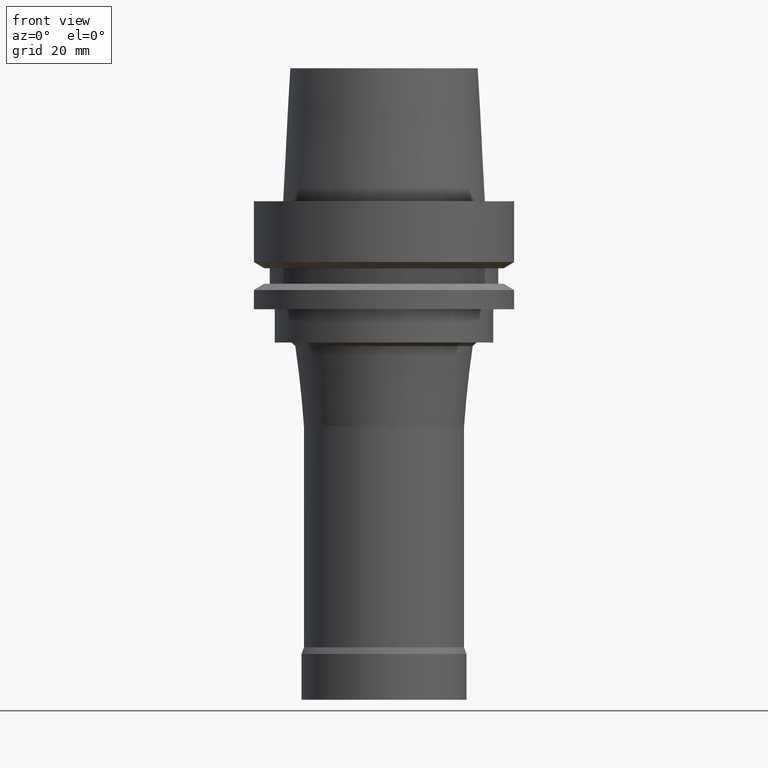
[diagram: clean part render]
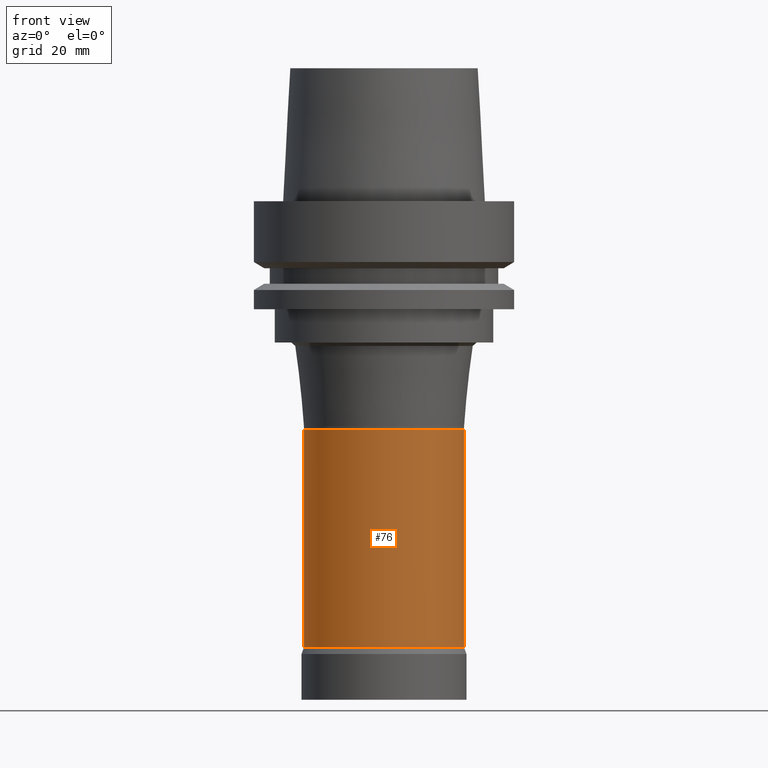
[diagram: same view with one face highlighted and labeled with its STEP entity id]
A machine part, front view. The second image highlights one B-rep face of the part: STEP entity #76.
In plain terms, the highlighted cylindrical surface (bore or boss wall) has radius 19.4 mm, axis along (-0, -0, 1).
Its self-contained STEP definition (entity closure, byte-faithful):
#76=ADVANCED_FACE('',(#99,#100),#101,.T.);
#99=FACE_BOUND('',#157,.T.);
#100=FACE_BOUND('',#158,.T.);
#101=CYLINDRICAL_SURFACE('',#159,19.4);
#157=EDGE_LOOP('',(#217));
#158=EDGE_LOOP('',(#218));
#159=AXIS2_PLACEMENT_3D('',#219,#220,#221);
#217=ORIENTED_EDGE('',*,*,#312,.F.);
#218=ORIENTED_EDGE('',*,*,#310,.T.);
#219=CARTESIAN_POINT('',(4.97064510257863E-015,9.94129020515726E-015,-81.17679491));
#220=DIRECTION('',(-6.12323399573677E-017,-1.22464679914735E-016,1.0));
#221=DIRECTION('',(-1.23259516440783E-032,1.0,1.22464679914735E-016));
#310=EDGE_CURVE('',#329,#329,#330,.T.);
#312=EDGE_CURVE('',#333,#333,#334,.T.);
#329=VERTEX_POINT('',#367);
#330=CIRCLE('',#368,19.4);
#333=VERTEX_POINT('',#371);
#334=CIRCLE('',#372,19.4);
#367=CARTESIAN_POINT('',(3.36777869765522E-015,19.4,-55.0));
#368=AXIS2_PLACEMENT_3D('',#405,#406,#407);
#371=CARTESIAN_POINT('',(6.57351150750204E-015,19.4,-107.35358982));
#372=AXIS2_PLACEMENT_3D('',#411,#412,#413);
#405=CARTESIAN_POINT('',(3.36777869765522E-015,6.73555739531044E-015,-55.0));
#406=DIRECTION('',(6.12323399573677E-017,1.22464679914735E-016,-1.0));
#407=DIRECTION('',(-1.23259516440783E-032,1.0,1.22464679914735E-016));
#411=CARTESIAN_POINT('',(6.57351150750204E-015,1.31470230150041E-014,-107.35358982));
#412=DIRECTION('',(6.12323399573677E-017,1.22464679914735E-016,-1.0));
#413=DIRECTION('',(-1.23259516440783E-032,1.0,1.22464679914735E-016));